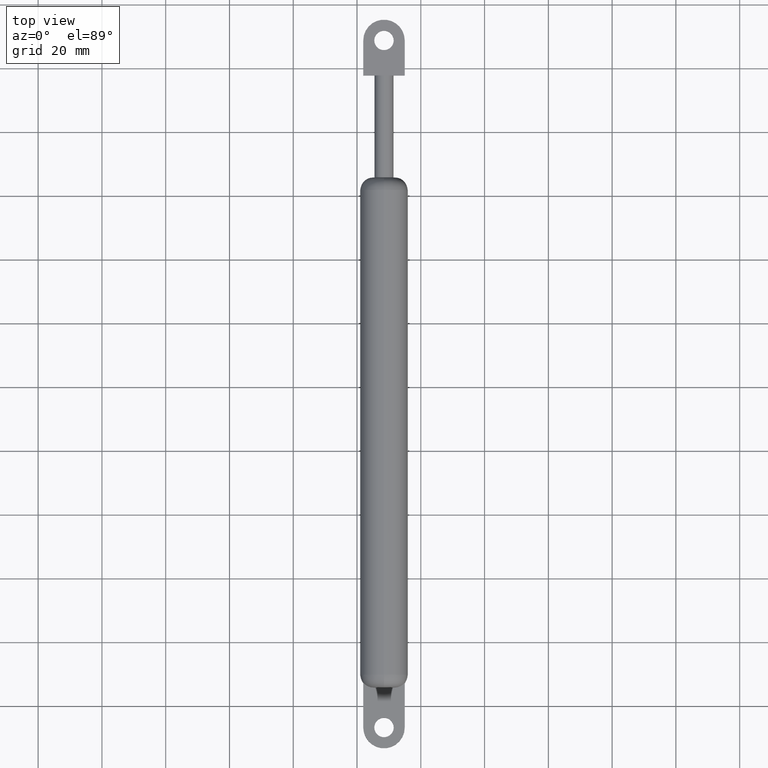
[diagram: clean part render]
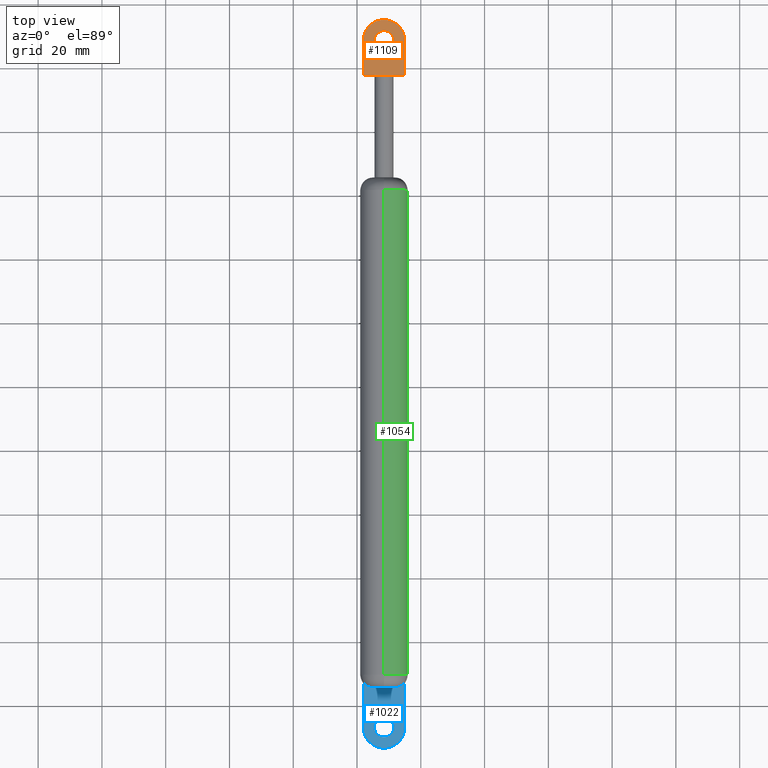
[diagram: same view with three faces highlighted in distinct colors, each labeled with its STEP entity id]
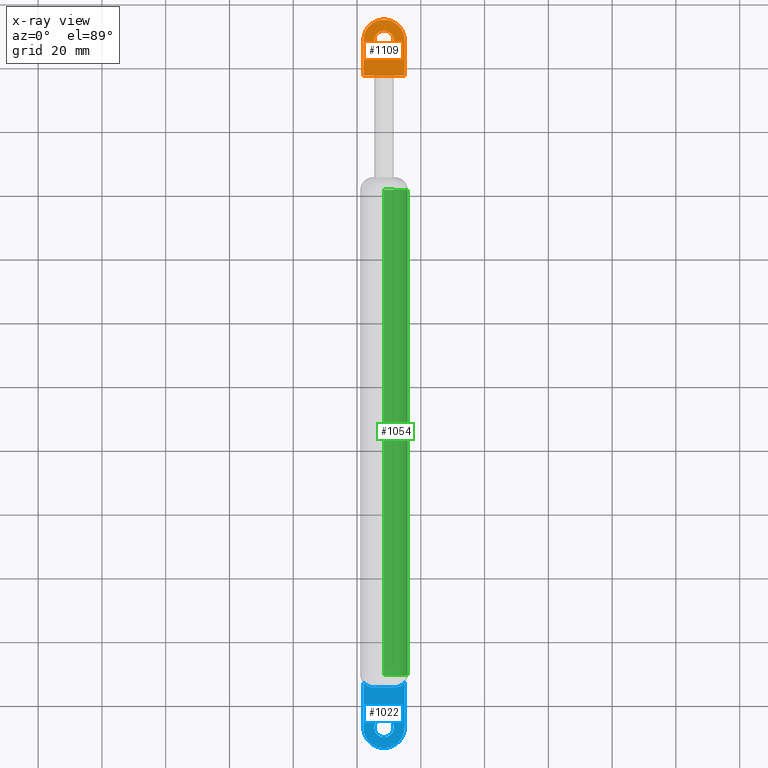
[diagram: x-ray of the same camera — body ghosted, the three highlighted faces saturated]
A machine part, top view with three faces highlighted in distinct colors.
The next image is the same camera in x-ray (body ghosted, the three faces saturated) — at least one of them is partly hidden behind the body in this view.
Their STEP definitions:

[orange] entity #1109 — the highlighted planar face has unit normal (0, 0, -1).
#70 = AXIS2_PLACEMENT_3D ( 'NONE', #312, #195, #309 ) ;
#195 = DIRECTION ( 'NONE',  ( -0.0000000000000000000, 0.0000000000000000000, -1.000000000000000000 ) ) ;
#267 = DIRECTION ( 'NONE',  ( -1.000000000000000000, -0.0000000000000000000, -0.0000000000000000000 ) ) ;
#268 = CARTESIAN_POINT ( 'NONE',  ( -6.500000000000000900, 11.00000000000000000, 1.500000000000000000 ) ) ;
#287 = DIRECTION ( 'NONE',  ( 7.885106708985487800E-017, -1.000000000000000000, -0.0000000000000000000 ) ) ;
#288 = CARTESIAN_POINT ( 'NONE',  ( -6.500000000000000000, 0.0000000000000000000, 1.500000000000000000 ) ) ;
#298 = DIRECTION ( 'NONE',  ( 1.000000000000000000, 0.0000000000000000000, 0.0000000000000000000 ) ) ;
#299 = DIRECTION ( 'NONE',  ( 0.0000000000000000000, 0.0000000000000000000, 1.000000000000000000 ) ) ;
#300 = CARTESIAN_POINT ( 'NONE',  ( 0.0000000000000000000, 0.0000000000000000000, 1.500000000000000000 ) ) ;
#309 = DIRECTION ( 'NONE',  ( -1.000000000000000000, 0.0000000000000000000, 0.0000000000000000000 ) ) ;
#312 = CARTESIAN_POINT ( 'NONE',  ( 0.0000000000000000000, 0.0000000000000000000, 1.500000000000000000 ) ) ;
#338 = DIRECTION ( 'NONE',  ( 1.000000000000000000, 0.0000000000000000000, 0.0000000000000000000 ) ) ;
#339 = DIRECTION ( 'NONE',  ( 0.0000000000000000000, 0.0000000000000000000, 1.000000000000000000 ) ) ;
#340 = CARTESIAN_POINT ( 'NONE',  ( 0.0000000000000000000, 0.0000000000000000000, 1.500000000000000000 ) ) ;
#366 = DIRECTION ( 'NONE',  ( -1.577021341797097600E-016, 1.000000000000000000, -0.0000000000000000000 ) ) ;
#367 = CARTESIAN_POINT ( 'NONE',  ( 6.499999999999999100, 11.00000000000000000, 1.500000000000000000 ) ) ;
#368 = DIRECTION ( 'NONE',  ( -1.000000000000000000, 0.0000000000000000000, 0.0000000000000000000 ) ) ;
#369 = DIRECTION ( 'NONE',  ( 0.0000000000000000000, 0.0000000000000000000, 1.000000000000000000 ) ) ;
#370 = CARTESIAN_POINT ( 'NONE',  ( 0.0000000000000000000, 0.0000000000000000000, 1.500000000000000000 ) ) ;
#371 = DIRECTION ( 'NONE',  ( -1.000000000000000000, -0.0000000000000000000, -0.0000000000000000000 ) ) ;
#372 = CARTESIAN_POINT ( 'NONE',  ( -6.500000000000000900, 11.00000000000000000, 1.500000000000000000 ) ) ;
#389 = CARTESIAN_POINT ( 'NONE',  ( -6.500000000000000900, 11.00000000000000000, 1.500000000000000000 ) ) ;
#398 = DIRECTION ( 'NONE',  ( -1.000000000000000000, -0.0000000000000000000, -0.0000000000000000000 ) ) ;
#437 = PLANE ( 'NONE',  #70 ) ;
#450 = AXIS2_PLACEMENT_3D ( 'NONE', #340, #339, #338 ) ;
#460 = VECTOR ( 'NONE', #267, 1000.000000000000000 ) ;
#473 = VECTOR ( 'NONE', #366, 1000.000000000000000 ) ;
#482 = CIRCLE ( 'NONE', #450, 3.049999999999999800 ) ;
#488 = VECTOR ( 'NONE', #398, 1000.000000000000000 ) ;
#502 = VECTOR ( 'NONE', #287, 1000.000000000000000 ) ;
#506 = VECTOR ( 'NONE', #371, 1000.000000000000000 ) ;
#516 = AXIS2_PLACEMENT_3D ( 'NONE', #300, #299, #298 ) ;
#517 = AXIS2_PLACEMENT_3D ( 'NONE', #370, #369, #368 ) ;
#538 = CIRCLE ( 'NONE', #517, 6.500000000000000900 ) ;
#545 = CIRCLE ( 'NONE', #516, 3.049999999999999800 ) ;
#597 = FACE_OUTER_BOUND ( 'NONE', #605, .T. ) ;
#598 = FACE_BOUND ( 'NONE', #633, .T. ) ;
#605 = EDGE_LOOP ( 'NONE', ( #1203, #710, #1214, #718, #694, #698 ) ) ;
#606 = VERTEX_POINT ( 'NONE', #1118 ) ;
#633 = EDGE_LOOP ( 'NONE', ( #1227, #705 ) ) ;
#641 = VERTEX_POINT ( 'NONE', #1123 ) ;
#674 = VERTEX_POINT ( 'NONE', #1129 ) ;
#694 = ORIENTED_EDGE ( 'NONE', *, *, #1030, .T. ) ;
#698 = ORIENTED_EDGE ( 'NONE', *, *, #1051, .T. ) ;
#705 = ORIENTED_EDGE ( 'NONE', *, *, #1039, .F. ) ;
#707 = VERTEX_POINT ( 'NONE', #1135 ) ;
#710 = ORIENTED_EDGE ( 'NONE', *, *, #1032, .T. ) ;
#718 = ORIENTED_EDGE ( 'NONE', *, *, #1056, .T. ) ;
#761 = VERTEX_POINT ( 'NONE', #1143 ) ;
#778 = VERTEX_POINT ( 'NONE', #1146 ) ;
#793 = LINE ( 'NONE', #268, #460 ) ;
#801 = LINE ( 'NONE', #288, #502 ) ;
#808 = LINE ( 'NONE', #367, #473 ) ;
#809 = LINE ( 'NONE', #372, #506 ) ;
#835 = LINE ( 'NONE', #389, #488 ) ;
#886 = VERTEX_POINT ( 'NONE', #1160 ) ;
#890 = VERTEX_POINT ( 'NONE', #1159 ) ;
#1013 = EDGE_CURVE ( 'NONE', #890, #761, #835, .T. ) ;
#1030 = EDGE_CURVE ( 'NONE', #606, #674, #809, .T. ) ;
#1031 = EDGE_CURVE ( 'NONE', #641, #886, #538, .T. ) ;
#1032 = EDGE_CURVE ( 'NONE', #886, #890, #808, .T. ) ;
#1039 = EDGE_CURVE ( 'NONE', #778, #707, #482, .T. ) ;
#1048 = EDGE_CURVE ( 'NONE', #707, #778, #545, .T. ) ;
#1051 = EDGE_CURVE ( 'NONE', #674, #641, #801, .T. ) ;
#1056 = EDGE_CURVE ( 'NONE', #761, #606, #793, .T. ) ;
#1109 = ADVANCED_FACE ( 'NONE', ( #597, #598 ), #437, .F. ) ;
#1118 = CARTESIAN_POINT ( 'NONE',  ( -2.598076211353316500, 11.00000000000000000, 1.499999999999999600 ) ) ;
#1123 = CARTESIAN_POINT ( 'NONE',  ( -6.500000000000000000, 0.0000000000000000000, 1.500000000000000000 ) ) ;
#1129 = CARTESIAN_POINT ( 'NONE',  ( -6.500000000000000900, 11.00000000000000000, 1.500000000000000000 ) ) ;
#1135 = CARTESIAN_POINT ( 'NONE',  ( -3.049999999999999800, 0.0000000000000000000, 1.500000000000000000 ) ) ;
#1143 = CARTESIAN_POINT ( 'NONE',  ( 2.598076211353316500, 11.00000000000000000, 1.499999999999999600 ) ) ;
#1146 = CARTESIAN_POINT ( 'NONE',  ( 3.049999999999999800, 3.735172737399427100E-016, 1.500000000000000000 ) ) ;
#1159 = CARTESIAN_POINT ( 'NONE',  ( 6.499999999999999100, 11.00000000000000000, 1.500000000000000000 ) ) ;
#1160 = CARTESIAN_POINT ( 'NONE',  ( 6.500000000000000900, 7.960204194457797400E-016, 1.500000000000000000 ) ) ;
#1203 = ORIENTED_EDGE ( 'NONE', *, *, #1031, .T. ) ;
#1214 = ORIENTED_EDGE ( 'NONE', *, *, #1013, .T. ) ;
#1227 = ORIENTED_EDGE ( 'NONE', *, *, #1048, .F. ) ;

[blue] entity #1022 — the highlighted planar face has unit normal (0, 0, -1).
#10 = B_SPLINE_CURVE_WITH_KNOTS ( 'NONE', 3,
 ( #278, #273, #276, #385, #352, #405, #183, #199, #256, #269 ),
 .UNSPECIFIED., .F., .F.,
 ( 4, 2, 2, 2, 4 ),
 ( 0.0000000000000000000, 0.0009479106192917075900, 0.001895821238583415200, 0.002843731857875122900, 0.003791642477166830400 ),
 .UNSPECIFIED. ) ;
#16 = B_SPLINE_CURVE_WITH_KNOTS ( 'NONE', 3,
 ( #168, #167, #165, #164, #163, #162, #161, #160, #159, #158, #157, #155 ),
 .UNSPECIFIED., .F., .F.,
 ( 4, 2, 2, 2, 2, 4 ),
 ( 0.0000000000000000000, 0.0009474565382672839900, 0.001421184807400926300, 0.001894913076534568900, 0.002842369614801853500, 0.003789826153069138600 ),
 .UNSPECIFIED. ) ;
#46 = VECTOR ( 'NONE', #182, 1000.000000000000000 ) ;
#85 = VECTOR ( 'NONE', #149, 1000.000000000000000 ) ;
#149 = DIRECTION ( 'NONE',  ( -1.000000000000000000, -0.0000000000000000000, -0.0000000000000000000 ) ) ;
#150 = CARTESIAN_POINT ( 'NONE',  ( -6.500000000000000900, 12.50000000000000000, 1.500000000000000000 ) ) ;
#153 = DIRECTION ( 'NONE',  ( 1.000000000000000000, 0.0000000000000000000, 0.0000000000000000000 ) ) ;
#155 = CARTESIAN_POINT ( 'NONE',  ( -6.500000000000000900, 14.06159391723973900, 1.500000000000000000 ) ) ;
#157 = CARTESIAN_POINT ( 'NONE',  ( -6.301079025299966200, 13.80954714884379300, 1.500000000000000200 ) ) ;
#158 = CARTESIAN_POINT ( 'NONE',  ( -6.071631759441165100, 13.58218735444840100, 1.500000000000000200 ) ) ;
#159 = CARTESIAN_POINT ( 'NONE',  ( -5.569910211356787300, 13.19039241433074000, 1.500000000000000000 ) ) ;
#160 = CARTESIAN_POINT ( 'NONE',  ( -5.300070611541437800, 13.02679020380364100, 1.500000000000000000 ) ) ;
#161 = CARTESIAN_POINT ( 'NONE',  ( -4.867933705530012900, 12.82797373598153900, 1.500000000000000400 ) ) ;
#162 = CARTESIAN_POINT ( 'NONE',  ( -4.718252866709279100, 12.76923012462448900, 1.500000000000000200 ) ) ;
#163 = CARTESIAN_POINT ( 'NONE',  ( -4.414908015272199100, 12.66962510321513800, 1.500000000000000000 ) ) ;
#164 = CARTESIAN_POINT ( 'NONE',  ( -4.261702647081754100, 12.62875816099156100, 1.500000000000000200 ) ) ;
#165 = CARTESIAN_POINT ( 'NONE',  ( -3.797761457812194300, 12.53136838510437200, 1.500000000000000000 ) ) ;
#167 = CARTESIAN_POINT ( 'NONE',  ( -3.482710262435922300, 12.50000000000000000, 1.499999999999999300 ) ) ;
#168 = CARTESIAN_POINT ( 'NONE',  ( -3.162277660168379100, 12.50000000000000000, 1.499999999999999600 ) ) ;
#173 = CARTESIAN_POINT ( 'NONE',  ( 0.0000000000000000000, 0.0000000000000000000, 1.500000000000000000 ) ) ;
#182 = DIRECTION ( 'NONE',  ( -0.0000000000000000000, 1.000000000000000000, -0.0000000000000000000 ) ) ;
#183 = CARTESIAN_POINT ( 'NONE',  ( 4.424166013030948400, 12.66321176165066100, 1.500000000000000200 ) ) ;
#184 = CARTESIAN_POINT ( 'NONE',  ( 6.499999999999999100, 12.50000000000000000, 1.500000000000000000 ) ) ;
#199 = CARTESIAN_POINT ( 'NONE',  ( 3.799066673430501400, 12.53129788027847600, 1.500000000000000200 ) ) ;
#212 = DIRECTION ( 'NONE',  ( 6.938893903907228400E-017, -1.000000000000000000, -0.0000000000000000000 ) ) ;
#213 = CARTESIAN_POINT ( 'NONE',  ( -6.500000000000000000, 0.0000000000000000000, 1.500000000000000000 ) ) ;
#238 = DIRECTION ( 'NONE',  ( 1.000000000000000000, 0.0000000000000000000, 0.0000000000000000000 ) ) ;
#252 = CARTESIAN_POINT ( 'NONE',  ( 0.0000000000000000000, 0.0000000000000000000, 1.500000000000000000 ) ) ;
#256 = CARTESIAN_POINT ( 'NONE',  ( 3.482490277252952500, 12.49999999999998800, 1.500000000000000200 ) ) ;
#269 = CARTESIAN_POINT ( 'NONE',  ( 3.162277660168379100, 12.50000000000000000, 1.499999999999999600 ) ) ;
#273 = CARTESIAN_POINT ( 'NONE',  ( 6.301352914847566200, 13.80989418603015500, 1.499999999999999800 ) ) ;
#276 = CARTESIAN_POINT ( 'NONE',  ( 6.076771661077152900, 13.58707555843190400, 1.500000000000000200 ) ) ;
#278 = CARTESIAN_POINT ( 'NONE',  ( 6.499999999999999100, 14.06159391723973500, 1.500000000000000000 ) ) ;
#282 = DIRECTION ( 'NONE',  ( 0.0000000000000000000, 0.0000000000000000000, 1.000000000000000000 ) ) ;
#352 = CARTESIAN_POINT ( 'NONE',  ( 5.302097790656445000, 13.02797946594873600, 1.500000000000000200 ) ) ;
#385 = CARTESIAN_POINT ( 'NONE',  ( 5.578435826273715000, 13.19619926282130600, 1.500000000000000200 ) ) ;
#395 = DIRECTION ( 'NONE',  ( -1.000000000000000000, 0.0000000000000000000, 0.0000000000000000000 ) ) ;
#396 = DIRECTION ( 'NONE',  ( -0.0000000000000000000, 0.0000000000000000000, -1.000000000000000000 ) ) ;
#397 = CARTESIAN_POINT ( 'NONE',  ( 0.0000000000000000000, 0.0000000000000000000, 1.500000000000000000 ) ) ;
#399 = PLANE ( 'NONE',  #468 ) ;
#405 = CARTESIAN_POINT ( 'NONE',  ( 4.727398631378009400, 12.76306256789203900, 1.499999999999999800 ) ) ;
#413 = CARTESIAN_POINT ( 'NONE',  ( 0.0000000000000000000, 0.0000000000000000000, 1.500000000000000000 ) ) ;
#426 = DIRECTION ( 'NONE',  ( 0.0000000000000000000, 0.0000000000000000000, 1.000000000000000000 ) ) ;
#427 = DIRECTION ( 'NONE',  ( -1.000000000000000000, 0.0000000000000000000, 0.0000000000000000000 ) ) ;
#430 = DIRECTION ( 'NONE',  ( 0.0000000000000000000, 0.0000000000000000000, 1.000000000000000000 ) ) ;
#468 = AXIS2_PLACEMENT_3D ( 'NONE', #397, #396, #395 ) ;
#469 = CIRCLE ( 'NONE', #540, 3.049999999999999800 ) ;
#490 = AXIS2_PLACEMENT_3D ( 'NONE', #413, #426, #427 ) ;
#510 = VECTOR ( 'NONE', #212, 1000.000000000000000 ) ;
#537 = CIRCLE ( 'NONE', #490, 6.499999999999999100 ) ;
#540 = AXIS2_PLACEMENT_3D ( 'NONE', #173, #430, #153 ) ;
#549 = CIRCLE ( 'NONE', #551, 3.049999999999999800 ) ;
#551 = AXIS2_PLACEMENT_3D ( 'NONE', #252, #282, #238 ) ;
#566 = FACE_BOUND ( 'NONE', #655, .T. ) ;
#573 = ORIENTED_EDGE ( 'NONE', *, *, #1098, .T. ) ;
#587 = ORIENTED_EDGE ( 'NONE', *, *, #1006, .T. ) ;
#601 = ORIENTED_EDGE ( 'NONE', *, *, #1008, .F. ) ;
#607 = VERTEX_POINT ( 'NONE', #1119 ) ;
#635 = VERTEX_POINT ( 'NONE', #1120 ) ;
#643 = VERTEX_POINT ( 'NONE', #1125 ) ;
#653 = EDGE_LOOP ( 'NONE', ( #587, #727, #732, #573, #725, #917 ) ) ;
#655 = EDGE_LOOP ( 'NONE', ( #906, #601 ) ) ;
#685 = LINE ( 'NONE', #150, #85 ) ;
#720 = VERTEX_POINT ( 'NONE', #1138 ) ;
#725 = ORIENTED_EDGE ( 'NONE', *, *, #1096, .T. ) ;
#727 = ORIENTED_EDGE ( 'NONE', *, *, #1091, .T. ) ;
#732 = ORIENTED_EDGE ( 'NONE', *, *, #1002, .T. ) ;
#760 = VERTEX_POINT ( 'NONE', #1142 ) ;
#773 = LINE ( 'NONE', #184, #46 ) ;
#774 = VERTEX_POINT ( 'NONE', #1145 ) ;
#780 = LINE ( 'NONE', #213, #510 ) ;
#841 = VERTEX_POINT ( 'NONE', #1151 ) ;
#844 = FACE_OUTER_BOUND ( 'NONE', #653, .T. ) ;
#880 = VERTEX_POINT ( 'NONE', #1161 ) ;
#906 = ORIENTED_EDGE ( 'NONE', *, *, #1003, .F. ) ;
#917 = ORIENTED_EDGE ( 'NONE', *, *, #1084, .T. ) ;
#1002 = EDGE_CURVE ( 'NONE', #880, #720, #10, .T. ) ;
#1003 = EDGE_CURVE ( 'NONE', #643, #841, #549, .T. ) ;
#1006 = EDGE_CURVE ( 'NONE', #635, #607, #537, .T. ) ;
#1008 = EDGE_CURVE ( 'NONE', #841, #643, #469, .T. ) ;
#1022 = ADVANCED_FACE ( 'NONE', ( #844, #566 ), #399, .F. ) ;
#1084 = EDGE_CURVE ( 'NONE', #760, #635, #780, .T. ) ;
#1091 = EDGE_CURVE ( 'NONE', #607, #880, #773, .T. ) ;
#1096 = EDGE_CURVE ( 'NONE', #774, #760, #16, .T. ) ;
#1098 = EDGE_CURVE ( 'NONE', #720, #774, #685, .T. ) ;
#1119 = CARTESIAN_POINT ( 'NONE',  ( 6.499999999999999100, 7.960204194457795500E-016, 1.500000000000000000 ) ) ;
#1120 = CARTESIAN_POINT ( 'NONE',  ( -6.500000000000000000, 0.0000000000000000000, 1.500000000000000000 ) ) ;
#1125 = CARTESIAN_POINT ( 'NONE',  ( -3.049999999999999800, 0.0000000000000000000, 1.500000000000000000 ) ) ;
#1138 = CARTESIAN_POINT ( 'NONE',  ( 3.162277660168379100, 12.50000000000000000, 1.499999999999999600 ) ) ;
#1142 = CARTESIAN_POINT ( 'NONE',  ( -6.500000000000000900, 14.06159391723973900, 1.500000000000000000 ) ) ;
#1145 = CARTESIAN_POINT ( 'NONE',  ( -3.162277660168379100, 12.50000000000000000, 1.499999999999999600 ) ) ;
#1151 = CARTESIAN_POINT ( 'NONE',  ( 3.049999999999999800, 3.735172737399427100E-016, 1.500000000000000000 ) ) ;
#1161 = CARTESIAN_POINT ( 'NONE',  ( 6.499999999999999100, 14.06159391723973500, 1.500000000000000000 ) ) ;

[green] entity #1054 — the highlighted cylindrical surface (edge-blend (fillet) strip) has radius 7.5 mm, axis along (-0, -1, -0).
#186 = CARTESIAN_POINT ( 'NONE',  ( 9.184850993605147900E-016, 172.5000000000000300, 7.500000000000000000 ) ) ;
#204 = DIRECTION ( 'NONE',  ( 0.0000000000000000000, 1.000000000000000000, 0.0000000000000000000 ) ) ;
#211 = DIRECTION ( 'NONE',  ( 0.0000000000000000000, 0.0000000000000000000, 1.000000000000000000 ) ) ;
#224 = CARTESIAN_POINT ( 'NONE',  ( 0.0000000000000000000, 16.49999999999998600, 0.0000000000000000000 ) ) ;
#245 = DIRECTION ( 'NONE',  ( 0.0000000000000000000, 0.0000000000000000000, 1.000000000000000000 ) ) ;
#246 = DIRECTION ( 'NONE',  ( -0.0000000000000000000, -1.000000000000000000, -0.0000000000000000000 ) ) ;
#248 = CARTESIAN_POINT ( 'NONE',  ( 0.0000000000000000000, 168.5000000000000000, 0.0000000000000000000 ) ) ;
#274 = DIRECTION ( 'NONE',  ( 0.0000000000000000000, 0.0000000000000000000, -1.000000000000000000 ) ) ;
#275 = DIRECTION ( 'NONE',  ( -0.0000000000000000000, -1.000000000000000000, -0.0000000000000000000 ) ) ;
#277 = CARTESIAN_POINT ( 'NONE',  ( 0.0000000000000000000, 172.5000000000000300, 0.0000000000000000000 ) ) ;
#380 = DIRECTION ( 'NONE',  ( -0.0000000000000000000, -1.000000000000000000, -0.0000000000000000000 ) ) ;
#422 = CARTESIAN_POINT ( 'NONE',  ( 0.0000000000000000000, 172.5000000000000300, -7.500000000000000000 ) ) ;
#423 = DIRECTION ( 'NONE',  ( -0.0000000000000000000, -1.000000000000000000, -0.0000000000000000000 ) ) ;
#451 = AXIS2_PLACEMENT_3D ( 'NONE', #248, #246, #245 ) ;
#452 = CIRCLE ( 'NONE', #451, 7.500000000000000000 ) ;
#486 = CIRCLE ( 'NONE', #541, 7.500000000000000000 ) ;
#489 = VECTOR ( 'NONE', #380, 1000.000000000000000 ) ;
#513 = AXIS2_PLACEMENT_3D ( 'NONE', #277, #275, #274 ) ;
#536 = VECTOR ( 'NONE', #423, 1000.000000000000000 ) ;
#541 = AXIS2_PLACEMENT_3D ( 'NONE', #224, #204, #211 ) ;
#581 = EDGE_LOOP ( 'NONE', ( #742, #728, #723, #716 ) ) ;
#639 = VERTEX_POINT ( 'NONE', #1121 ) ;
#640 = VERTEX_POINT ( 'NONE', #1122 ) ;
#673 = VERTEX_POINT ( 'NONE', #1128 ) ;
#716 = ORIENTED_EDGE ( 'NONE', *, *, #1012, .F. ) ;
#723 = ORIENTED_EDGE ( 'NONE', *, *, #1004, .T. ) ;
#728 = ORIENTED_EDGE ( 'NONE', *, *, #1005, .T. ) ;
#742 = ORIENTED_EDGE ( 'NONE', *, *, #1076, .T. ) ;
#795 = FACE_OUTER_BOUND ( 'NONE', #581, .T. ) ;
#796 = CYLINDRICAL_SURFACE ( 'NONE', #513, 7.500000000000000000 ) ;
#805 = VERTEX_POINT ( 'NONE', #1150 ) ;
#834 = LINE ( 'NONE', #422, #536 ) ;
#856 = LINE ( 'NONE', #186, #489 ) ;
#1004 = EDGE_CURVE ( 'NONE', #673, #640, #486, .T. ) ;
#1005 = EDGE_CURVE ( 'NONE', #639, #673, #856, .T. ) ;
#1012 = EDGE_CURVE ( 'NONE', #805, #640, #834, .T. ) ;
#1054 = ADVANCED_FACE ( 'NONE', ( #795 ), #796, .T. ) ;
#1076 = EDGE_CURVE ( 'NONE', #805, #639, #452, .T. ) ;
#1121 = CARTESIAN_POINT ( 'NONE',  ( 9.184850993605147900E-016, 168.5000000000000000, 7.500000000000000000 ) ) ;
#1122 = CARTESIAN_POINT ( 'NONE',  ( 0.0000000000000000000, 16.49999999999998600, -7.500000000000000000 ) ) ;
#1128 = CARTESIAN_POINT ( 'NONE',  ( 9.184850993605147900E-016, 16.49999999999998600, 7.500000000000000000 ) ) ;
#1150 = CARTESIAN_POINT ( 'NONE',  ( 0.0000000000000000000, 168.5000000000000000, -7.500000000000000000 ) ) ;